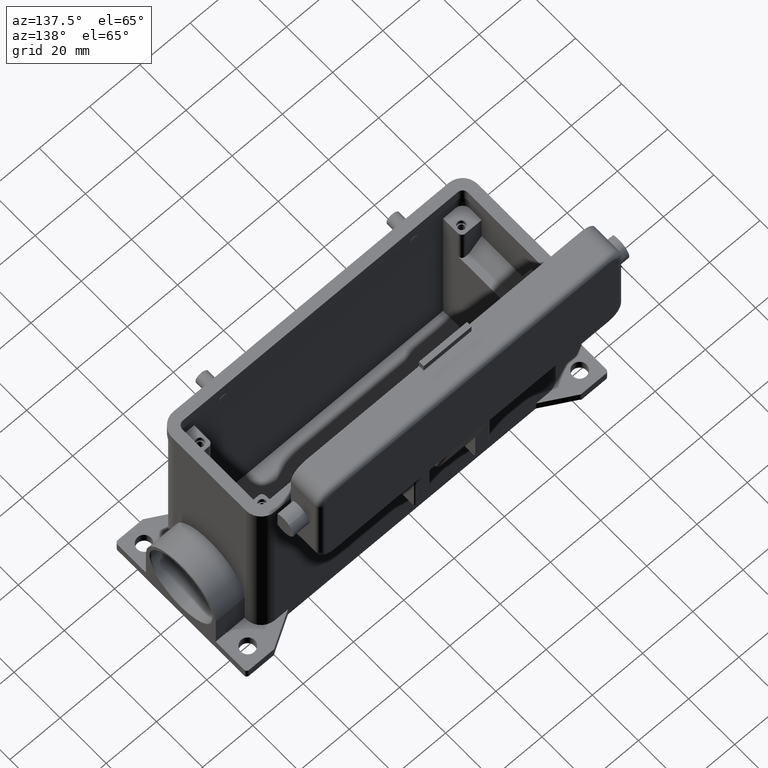
[diagram: clean part render]
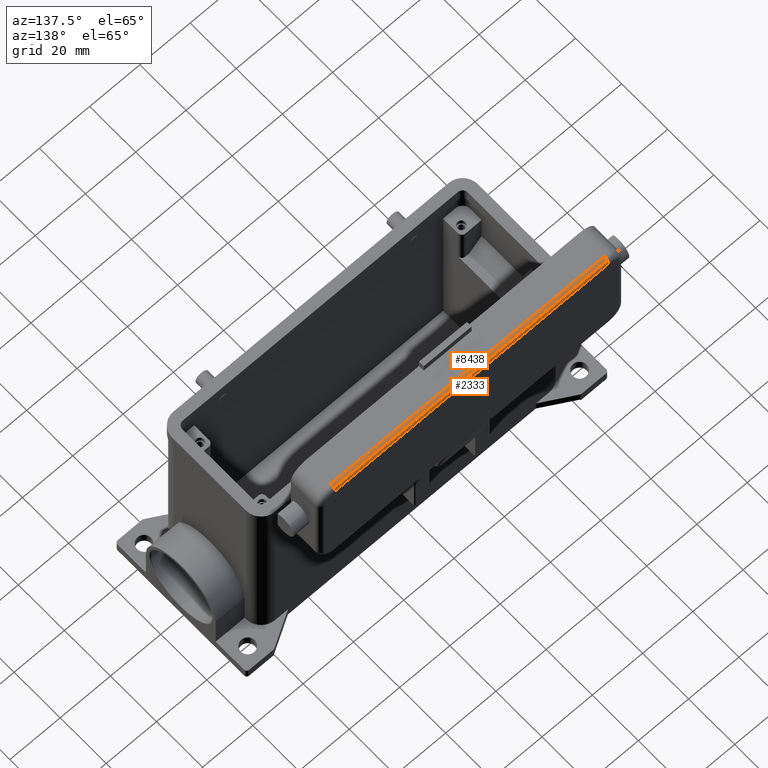
[diagram: same view with one multi-face feature highlighted, each face labeled with its STEP entity id]
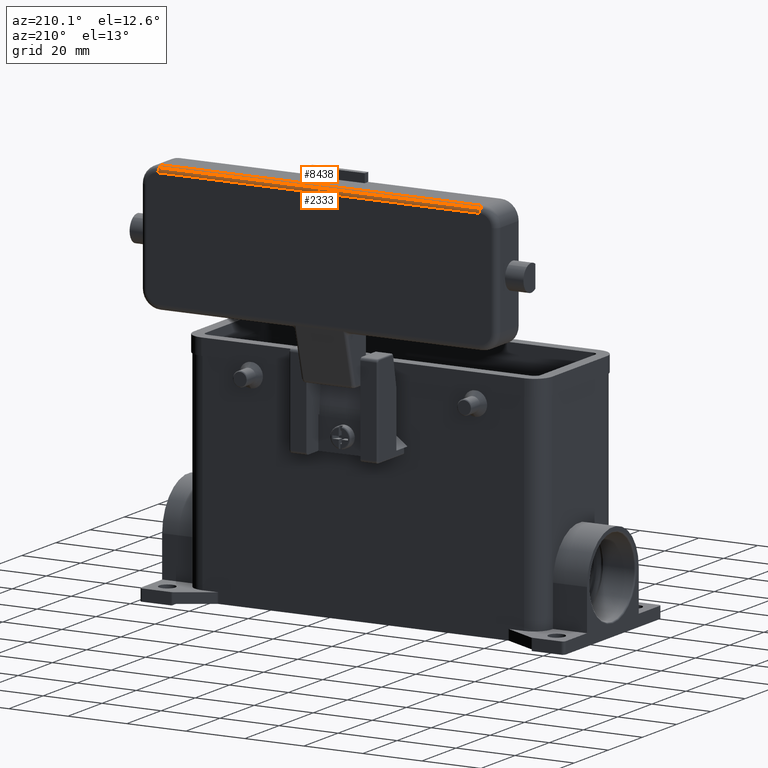
[diagram: same view with one multi-face feature highlighted, each face labeled with its STEP entity id]
A machine part, auxiliary view. The highlighted faces form ONE feature: a constant-radius fillet chain: 2 tangent blend faces with common blend radius 2 mm. The faces share edges in the B-rep.
A second angle (auxiliary view) of the same feature is appended — it is thin or edge-on in the first view.
Their STEP definitions:
[1] entity #8438 (Cylinder):
#2297=CARTESIAN_POINT('',(54.500000000000014,47.164213562373071,84.914213562373106));
#2298=VERTEX_POINT('',#2297);
#2299=CARTESIAN_POINT('',(-54.500000000000028,47.164213562373071,84.914213562373106));
#2300=VERTEX_POINT('',#2299);
#2301=CARTESIAN_POINT('',(54.500000000000014,47.164213562373071,84.914213562373106));
#2302=DIRECTION('',(-1.0,0.0,0.0));
#2303=VECTOR('',#2302,109.000000000000040);
#2304=LINE('',#2301,#2303);
#2305=EDGE_CURVE('',#2298,#2300,#2304,.T.);
#8360=CARTESIAN_POINT('',(54.500000000000014,45.749999999999972,85.500000000000000));
#8361=VERTEX_POINT('',#8360);
#8362=CARTESIAN_POINT('',(54.500000000000014,45.749999999999972,83.500000000000014));
#8363=DIRECTION('',(1.0,0.0,0.0));
#8364=DIRECTION('',(0.0,1.0,0.0));
#8365=AXIS2_PLACEMENT_3D('',#8362,#8363,#8364);
#8366=CIRCLE('',#8365,2.000000000000002);
#8367=EDGE_CURVE('',#2298,#8361,#8366,.T.);
#8414=CARTESIAN_POINT('',(27.249999999839446,45.749999999999972,83.500000000000014));
#8415=DIRECTION('',(-1.0,1.692807E-031,0.0));
#8416=DIRECTION('',(0.0,0.707106781186548,0.707106781186548));
#8417=AXIS2_PLACEMENT_3D('',#8414,#8415,#8416);
#8418=CYLINDRICAL_SURFACE('',#8417,2.000000000000000);
#8419=ORIENTED_EDGE('',*,*,#2305,.T.);
#8420=CARTESIAN_POINT('',(-54.500000000000028,45.749999999999972,85.500000000000000));
#8421=VERTEX_POINT('',#8420);
#8422=CARTESIAN_POINT('',(-54.500000000000028,45.749999999999972,83.500000000000014));
#8423=DIRECTION('',(1.0,0.0,0.0));
#8424=DIRECTION('',(0.0,1.0,0.0));
#8425=AXIS2_PLACEMENT_3D('',#8422,#8423,#8424);
#8426=CIRCLE('',#8425,2.000000000000002);
#8427=EDGE_CURVE('',#2300,#8421,#8426,.T.);
#8428=ORIENTED_EDGE('',*,*,#8427,.T.);
#8429=CARTESIAN_POINT('',(-54.500000000000028,45.749999999999972,85.500000000000000));
#8430=DIRECTION('',(1.0,0.0,0.0));
#8431=VECTOR('',#8430,109.000000000000040);
#8432=LINE('',#8429,#8431);
#8433=EDGE_CURVE('',#8421,#8361,#8432,.T.);
#8434=ORIENTED_EDGE('',*,*,#8433,.T.);
#8435=ORIENTED_EDGE('',*,*,#8367,.F.);
#8436=EDGE_LOOP('',(#8419,#8428,#8434,#8435));
#8437=FACE_OUTER_BOUND('',#8436,.T.);
#8438=ADVANCED_FACE('',(#8437),#8418,.T.);
[2] entity #2333 (Cylinder):
#2292=CARTESIAN_POINT('',(27.249999999839446,45.749999999999972,83.500000000000014));
#2293=DIRECTION('',(-1.0,1.692807E-031,0.0));
#2294=DIRECTION('',(0.0,0.707106781186548,0.707106781186548));
#2295=AXIS2_PLACEMENT_3D('',#2292,#2293,#2294);
#2296=CYLINDRICAL_SURFACE('',#2295,2.000000000000000);
#2297=CARTESIAN_POINT('',(54.500000000000014,47.164213562373071,84.914213562373106));
#2298=VERTEX_POINT('',#2297);
#2299=CARTESIAN_POINT('',(-54.500000000000028,47.164213562373071,84.914213562373106));
#2300=VERTEX_POINT('',#2299);
#2301=CARTESIAN_POINT('',(54.500000000000014,47.164213562373071,84.914213562373106));
#2302=DIRECTION('',(-1.0,0.0,0.0));
#2303=VECTOR('',#2302,109.000000000000040);
#2304=LINE('',#2301,#2303);
#2305=EDGE_CURVE('',#2298,#2300,#2304,.T.);
#2306=ORIENTED_EDGE('',*,*,#2305,.F.);
#2307=CARTESIAN_POINT('',(54.500000000000014,47.749999999999979,83.500000000000014));
#2308=VERTEX_POINT('',#2307);
#2309=CARTESIAN_POINT('',(54.500000000000014,45.749999999999972,83.500000000000014));
#2310=DIRECTION('',(1.0,0.0,0.0));
#2311=DIRECTION('',(0.0,1.0,0.0));
#2312=AXIS2_PLACEMENT_3D('',#2309,#2310,#2311);
#2313=CIRCLE('',#2312,2.000000000000002);
#2314=EDGE_CURVE('',#2308,#2298,#2313,.T.);
#2315=ORIENTED_EDGE('',*,*,#2314,.F.);
#2316=CARTESIAN_POINT('',(-54.500000000000028,47.749999999999979,83.500000000000014));
#2317=VERTEX_POINT('',#2316);
#2318=CARTESIAN_POINT('',(54.500000000000014,47.749999999999979,83.500000000000014));
#2319=DIRECTION('',(-1.0,0.0,0.0));
#2320=VECTOR('',#2319,109.000000000000040);
#2321=LINE('',#2318,#2320);
#2322=EDGE_CURVE('',#2308,#2317,#2321,.T.);
#2323=ORIENTED_EDGE('',*,*,#2322,.T.);
#2324=CARTESIAN_POINT('',(-54.500000000000028,45.749999999999972,83.500000000000014));
#2325=DIRECTION('',(1.0,0.0,0.0));
#2326=DIRECTION('',(0.0,1.0,0.0));
#2327=AXIS2_PLACEMENT_3D('',#2324,#2325,#2326);
#2328=CIRCLE('',#2327,2.000000000000002);
#2329=EDGE_CURVE('',#2317,#2300,#2328,.T.);
#2330=ORIENTED_EDGE('',*,*,#2329,.T.);
#2331=EDGE_LOOP('',(#2306,#2315,#2323,#2330));
#2332=FACE_OUTER_BOUND('',#2331,.T.);
#2333=ADVANCED_FACE('',(#2332),#2296,.T.);